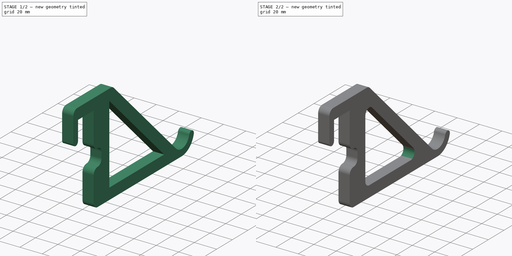
[diagram: build sequence overview — one tinted view per stage of 2, left to right]
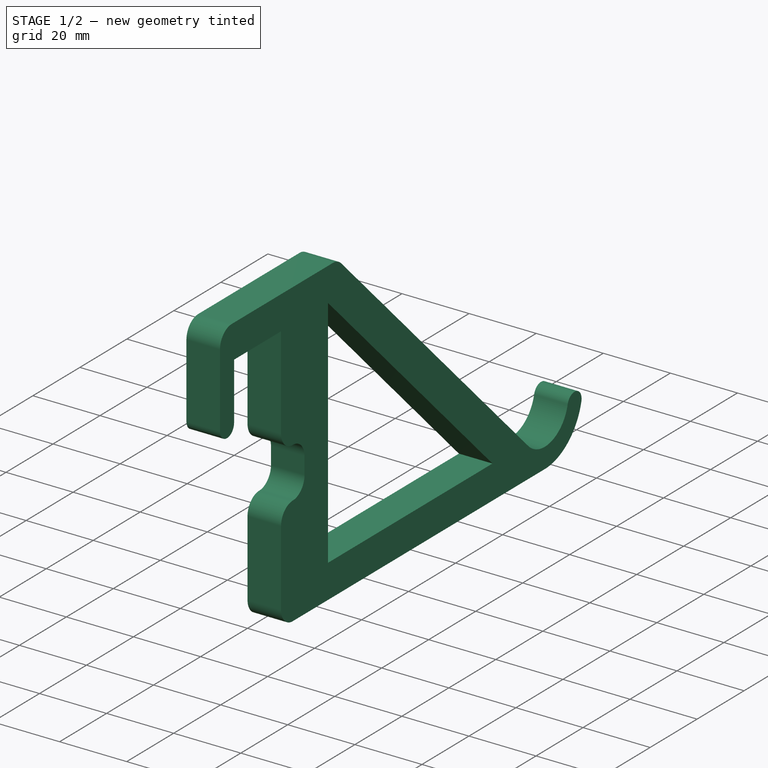
[diagram: stage 1 of 2 — iso view after this stage's code; geometry added in this stage tinted green]
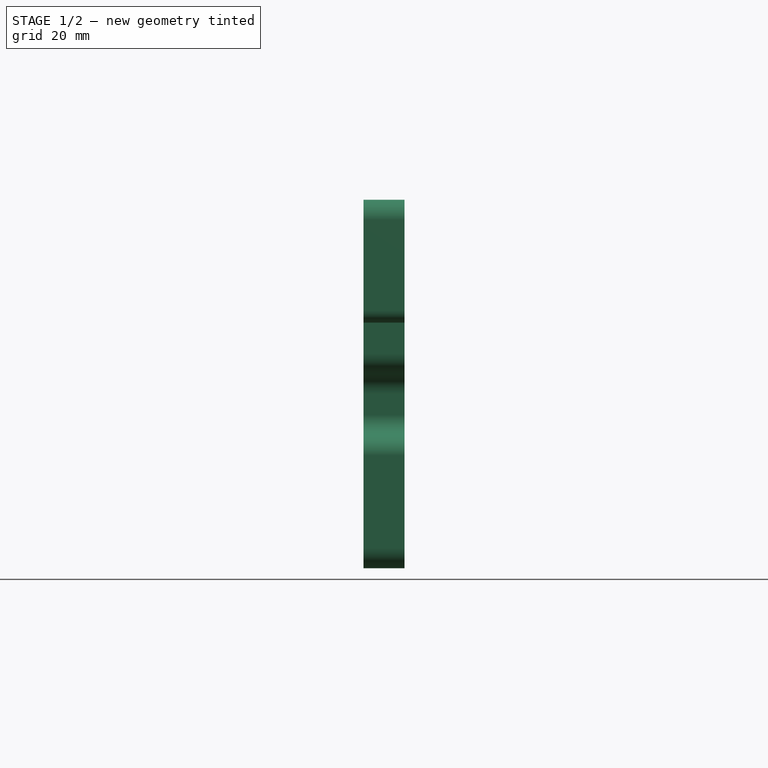
[diagram: stage 1 of 2 — front view after this stage's code; geometry added in this stage tinted green]
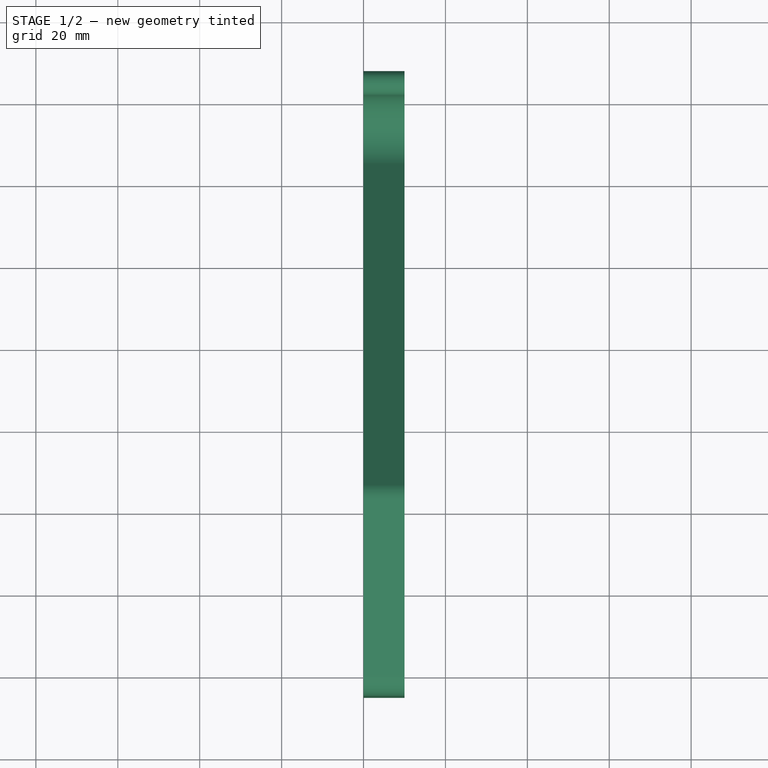
[diagram: stage 1 of 2 — top view after this stage's code; geometry added in this stage tinted green]
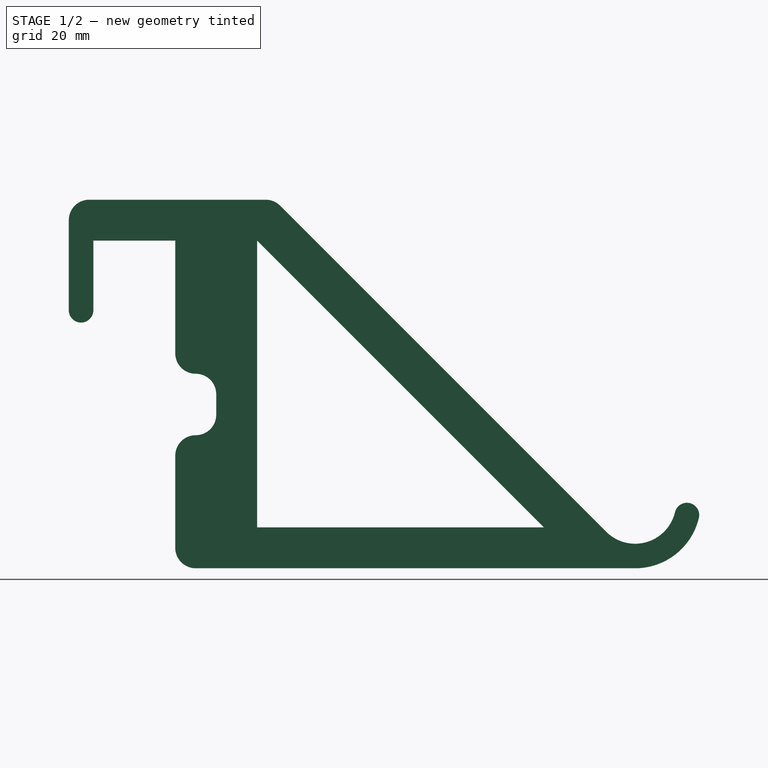
[diagram: stage 1 of 2 — right view after this stage's code; geometry added in this stage tinted green]
FCSTD DOCUMENT  (FreeCAD 0.19R24276 (Git))
Label: SchuurHanger
License: All rights reserved
LicenseURL: http://en.wikipedia.org/wiki/All_rights_reserved
objects: Sketcher::SketchObject×1, PartDesign::Pad×1, PartDesign::Fillet×1, PartDesign::Body×1
note: 6 computed .brp shape members not serialized (recipe doc carries the construction recipe); baked Part::Feature solids carry a one-line shape summary decoded from their .brp

FEATURE [Sketcher::SketchObject] Sketch
  FullyConstrained = true
  MapMode = 5
  Placement = pos=(0,0,0) rot=(0.57735,0.57735,0.57735;2.0944rad)
  Support = -> [YZ_Plane]
  sketch-geometry (33):
    g0: LineSegment StartX=-46 StartY=53 StartZ=0 EndX=-46 EndY=75 EndZ=0
    g1: LineSegment StartX=-41 StartY=80 StartZ=0 EndX=2.07107 EndY=80 EndZ=0
    g2: LineSegment StartX=5.6066 StartY=78.5355 StartZ=0 EndX=85.2132 EndY=-1.07107 EndZ=0
    g3: LineSegment StartX=-20 StartY=70 StartZ=0 EndX=-40 EndY=70 EndZ=0
    g4: LineSegment StartX=-40 StartY=70 StartZ=0 EndX=-40 EndY=53 EndZ=0
    g5: LineSegment StartX=-46 StartY=53 StartZ=0 EndX=-40 EndY=53 EndZ=0
    g6: LineSegment StartX=-20 StartY=70 StartZ=0 EndX=0 EndY=70 EndZ=0
    g7: ArcOfCircle CenterX=92.2843 CenterY=6 CenterZ=0 NormalX=0 NormalY=0 NormalZ=1 AngleXU=0 Radius=10 StartAngle=3.92699 EndAngle=6.05032
    g8: ArcOfCircle CenterX=92.2843 CenterY=6 CenterZ=0 NormalX=0 NormalY=0 NormalZ=1 AngleXU=0 Radius=16 StartAngle=4.71239 EndAngle=6.05032
    g9: LineSegment StartX=-15 StartY=-10 StartZ=0 EndX=92.2843 EndY=-10 EndZ=0
    g10: LineSegment StartX=70 StartY=0 StartZ=0 EndX=0 EndY=70 EndZ=0
    g11: LineSegment StartX=0 StartY=70 StartZ=0 EndX=0 EndY=0 EndZ=0
    g12: LineSegment StartX=0 StartY=0 StartZ=0 EndX=70 EndY=0 EndZ=0
    g13: LineSegment StartX=0 StartY=70 StartZ=0 EndX=7.07107 EndY=77.0711 EndZ=0
    g14: LineSegment StartX=0 StartY=70 StartZ=0 EndX=0 EndY=80 EndZ=0
    g15: LineSegment StartX=0 StartY=0 StartZ=0 EndX=0 EndY=-10 EndZ=0
    g16: LineSegment StartX=-10 StartY=30 StartZ=0 EndX=0 EndY=30 EndZ=0
    g17: LineSegment StartX=-10 StartY=32.5 StartZ=0 EndX=-10 EndY=27.5 EndZ=0
    g18: LineSegment StartX=-20 StartY=70 StartZ=0 EndX=-20 EndY=42.5 EndZ=0
    g19: LineSegment StartX=-20 StartY=17.5 StartZ=0 EndX=-20 EndY=-5 EndZ=0
    g20: ArcOfCircle CenterX=-41 CenterY=75 CenterZ=0 NormalX=0 NormalY=0 NormalZ=1 AngleXU=0 Radius=5 StartAngle=1.5708 EndAngle=3.14159
    g21: ArcOfCircle CenterX=2.07107 CenterY=75 CenterZ=0 NormalX=0 NormalY=0 NormalZ=1 AngleXU=0 Radius=5 StartAngle=0.785398 EndAngle=1.5708
    g22: LineSegment StartX=92.2843 StartY=6 StartZ=0 EndX=104.933 EndY=6 EndZ=0
    g23: LineSegment StartX=92.2843 StartY=-10 StartZ=0 EndX=92.2843 EndY=-4 EndZ=0
    g24: ArcOfCircle CenterX=104.933 CenterY=3 CenterZ=0 NormalX=0 NormalY=0 NormalZ=1 AngleXU=0 Radius=3 StartAngle=6.05032 EndAngle=9.19191
    g25: ArcOfCircle CenterX=-15 CenterY=32.5 CenterZ=0 NormalX=0 NormalY=0 NormalZ=1 AngleXU=0 Radius=5 StartAngle=-9e-16 EndAngle=1.5708
    g26: ArcOfCircle CenterX=-15 CenterY=27.5 CenterZ=0 NormalX=0 NormalY=0 NormalZ=1 AngleXU=0 Radius=5 StartAngle=4.71239 EndAngle=6.28319
    g27: ArcOfCircle CenterX=-15 CenterY=-5 CenterZ=0 NormalX=0 NormalY=0 NormalZ=1 AngleXU=0 Radius=5 StartAngle=3.14159 EndAngle=4.71239
    g28: ArcOfCircle CenterX=-43 CenterY=53 CenterZ=0 NormalX=0 NormalY=0 NormalZ=1 AngleXU=0 Radius=3 StartAngle=3.14159 EndAngle=6.28319
    g29: LineSegment StartX=-43 StartY=70 StartZ=0 EndX=-43 EndY=50 EndZ=0
    g30: ArcOfCircle CenterX=-15 CenterY=42.5 CenterZ=0 NormalX=0 NormalY=0 NormalZ=1 AngleXU=0 Radius=5 StartAngle=3.14159 EndAngle=4.71239
    g31: ArcOfCircle CenterX=-15 CenterY=17.5 CenterZ=0 NormalX=0 NormalY=0 NormalZ=1 AngleXU=0 Radius=5 StartAngle=1.5708 EndAngle=3.14159
    g32: LineSegment StartX=-15 StartY=42.5 StartZ=0 EndX=-15 EndY=17.5 EndZ=0
  constraints (92):
    c: Vertical(g0)
    c: Horizontal(g1)
    c: Horizontal(g3)
    c: Coincident(g3,g4)
    c: Vertical(g4)
    c: Coincident(g5,g4)
    c: Horizontal(g5)
    c: DistanceX(g3,g3) = 20
    c: Coincident(g0,g5)
    c: Horizontal(g6)
    c: Tangent(g7,g2) = -1.5708
    c: Coincident(g8,g7)
    c: Radius(g7) = 10
    c: Horizontal(g9)
    c: Tangent(g8,g9) = -1.5708
    c: Coincident(g10,g11)
    c: Vertical(g11)
    c: Coincident(g11,g12)
    c: Coincident(g12,g10)
    c: Horizontal(g12)
    c: Coincident(g13,g6)
    c: PointOnObject(g13,g2)
    c: Perpendicular(g2,g13)
    c: Coincident(g14,g6)
    c: PointOnObject(g14,g1)
    c: Vertical(g14)
    c: Coincident(g10,g6)
    c: DistanceX(g3,g14) = 20
    c: Coincident(g15,g11)
    c: Vertical(g15)
    c: PointOnObject(g15,g9)
    c: Parallel(g10,g2)
    c: PointOnObject(g16,g11)
    c: Horizontal(g16)
    c: DistanceY(g16,g3) = 40
    c: Equal(g15,g14)
    c: Coincident(g18,g3)
    c: Vertical(g18)
    c: Vertical(g19)
    c: Angle(g11,g2) = 0.785398
    c: Equal(g14,g13)
    c: Coincident(g6,g3)
    c: Tangent(g0,g20) = 1.5708
    c: Tangent(g1,g20) = 1.5708
    c: Tangent(g1,g21) = 1.5708
    c: Tangent(g2,g21) = 1.5708
    c: Coincident(g22,g7)
    c: Horizontal(g22)
    c: PointOnObject(g23,g7)
    c: PointOnObject(g7,g23)
    c: Equal(g20,g21)
    c: Tangent(g8,g24) = -1.5708
    c: Tangent(g7,g24) = 1.5708
    c: Tangent(g22,g24) = 1.5708
    c: Coincident(g8,g23)
    c: Tangent(g9,g27) = -1.5708
    c: Tangent(g19,g27) = -1.5708
    c: DistanceY(g9,g3) = 80
    c: DistanceY(g15,g15) = 10
    c: PointOnObject(g28,g5)
    c: Coincident(g28,g0)
    c: Coincident(g28,g4)
    c: PointOnObject(g29,g28)
    c: Vertical(g29)
    c: DistanceX(g5,g5) = 6
    c: PointOnObject(g29,g3)
    c: PointOnObject(g28,g29)
    c: Equal(g29,g3)
    c: Coincident(g11,g-1)  '__ANCHOR__'
    c: Tangent(g18,g30) = -1.5708
    c: Tangent(g19,g31) = -1.5708
    c: DistanceY(g26,g25) = 15
    c: Symmetric(g18,g19,g16)
    c: Equal(g16,g15)
    c: DistanceY(g23,g23) = 6
    c: Vertical(g17)
    c: Equal(g31,g26)
    c: Equal(g26,g25)
    c: Equal(g25,g30)
    c: Coincident(g32,g30)
    c: Coincident(g32,g31)
    c: PointOnObject(g26,g32)
    c: PointOnObject(g25,g32)
    c: PointOnObject(g26,g32)
    c: Coincident(g26,g31)
    c: Coincident(g25,g30)
    c: Coincident(g17,g26)
    c: PointOnObject(g25,g32)
    c: Tangent(g17,g25) = 1.5708
    c: PointOnObject(g16,g17)
    c: Equal(g27,g21)
    c: Radius(g20) = 5
FEATURE [PartDesign::Pad] Pad
  Direction = (1,1,1)
  Length = 10
  Length2 = 100
  Placement = pos=(0,0,0) rot=(0.57735,0.57735,0.57735;2.0944rad)
  Profile = -> Sketch
  Type = 0
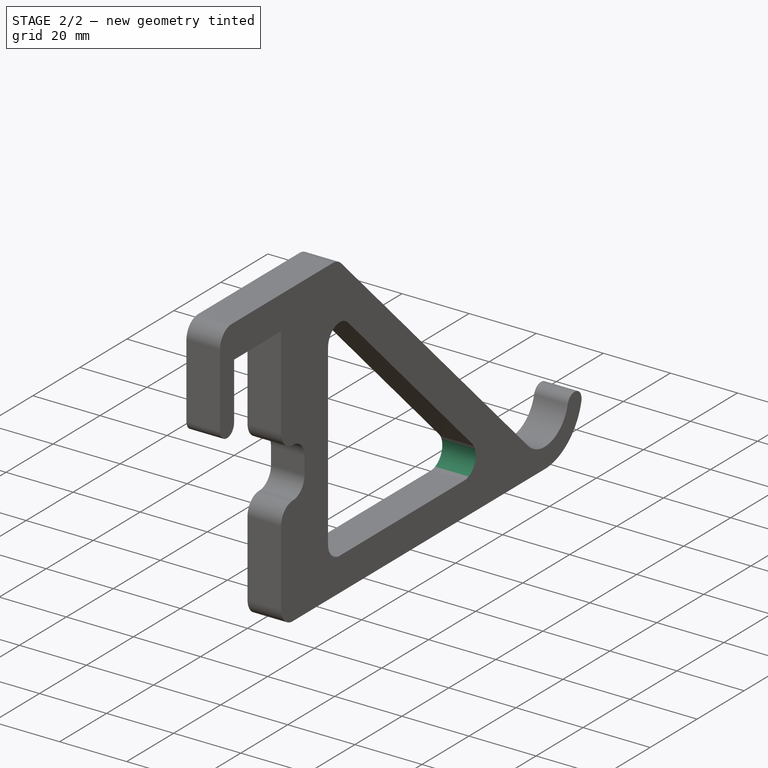
[diagram: stage 2 of 2 — iso view after this stage's code; geometry added in this stage tinted green]
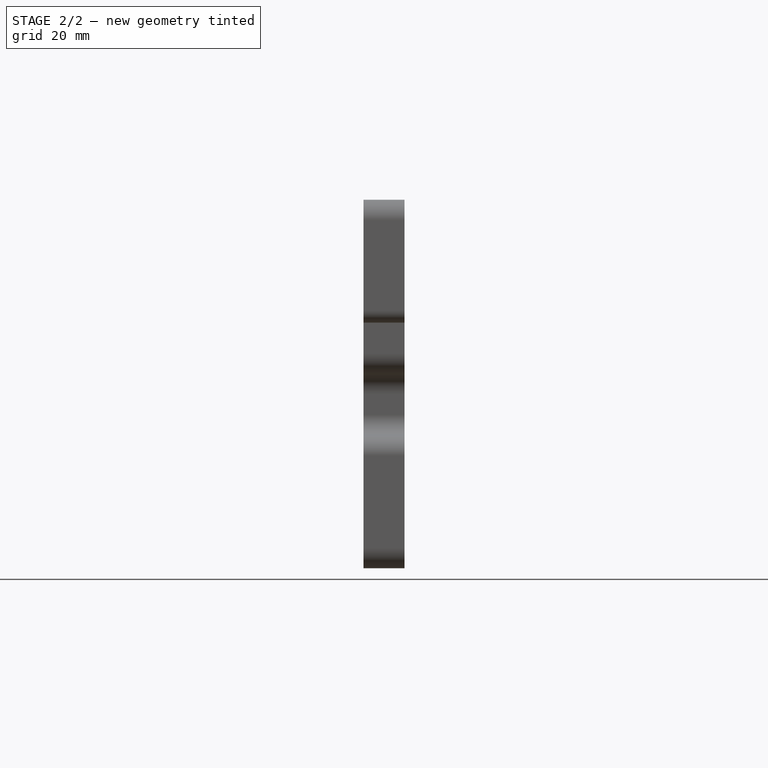
[diagram: stage 2 of 2 — front view after this stage's code; geometry added in this stage tinted green]
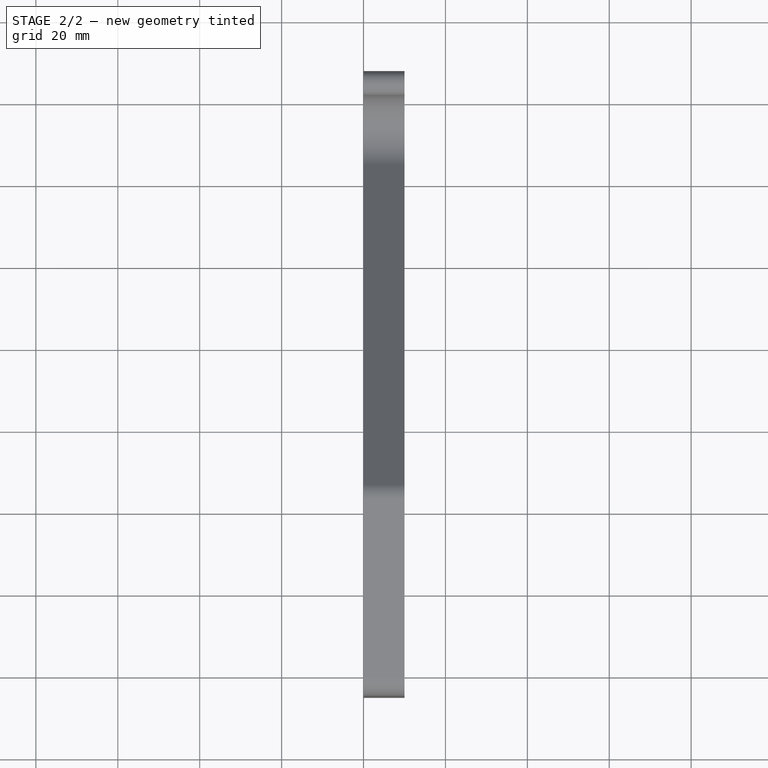
[diagram: stage 2 of 2 — top view after this stage's code; geometry added in this stage tinted green]
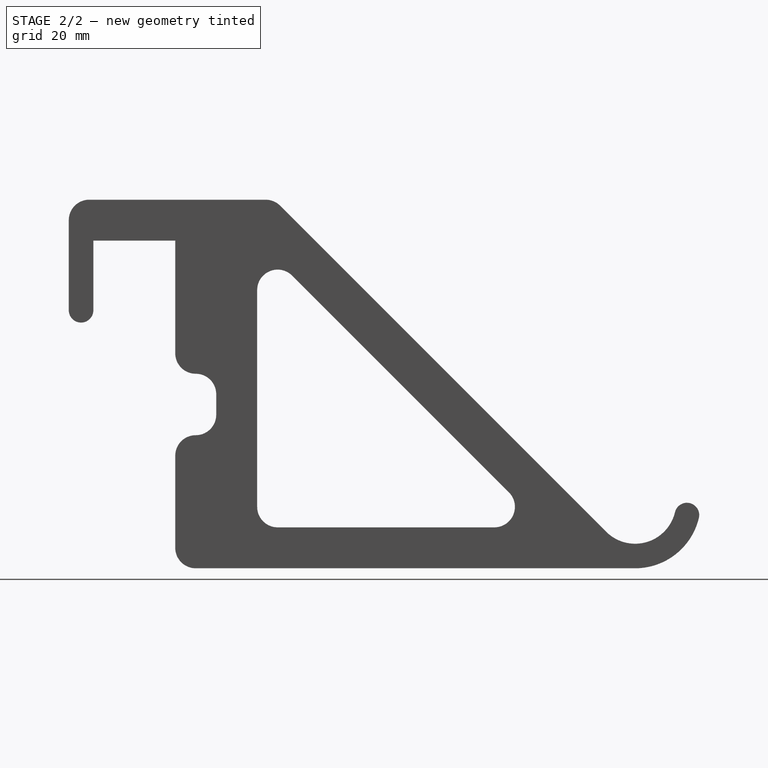
[diagram: stage 2 of 2 — right view after this stage's code; geometry added in this stage tinted green]
FEATURE [PartDesign::Fillet] Fillet
  Base = -> Pad [Edge62,Edge65,Edge61]
  BaseFeature = -> Pad
  Placement = pos=(0,0,0) rot=(0.57735,0.57735,0.57735;2.0944rad)
  Radius = 5
  SupportTransform = false
FEATURE [PartDesign::Body] Body
  Group = -> [Sketch,Pad,Fillet]
  Origin = -> Origin
  Tip = -> Fillet
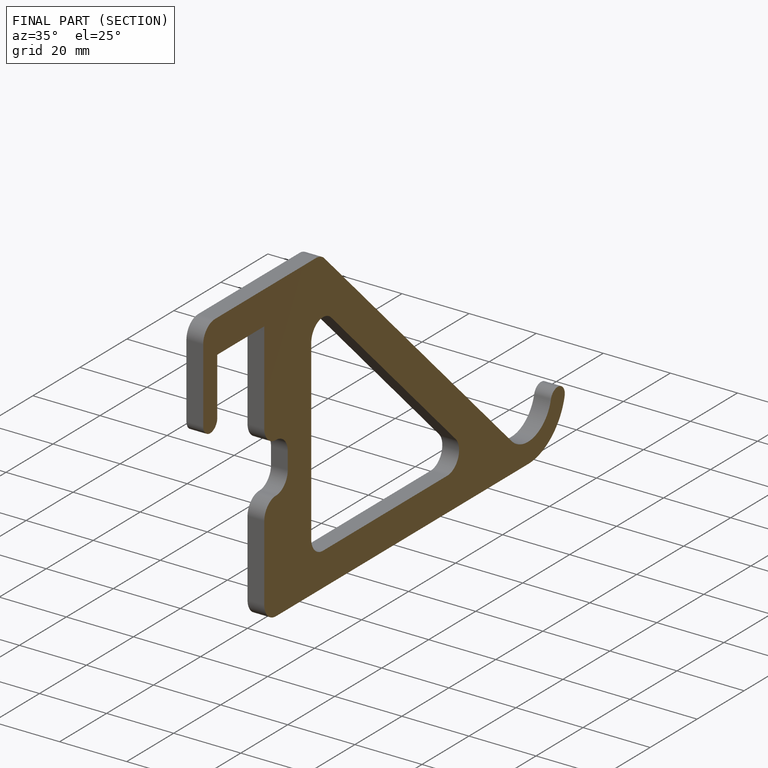
[diagram: finished part — half-section view (interior)]
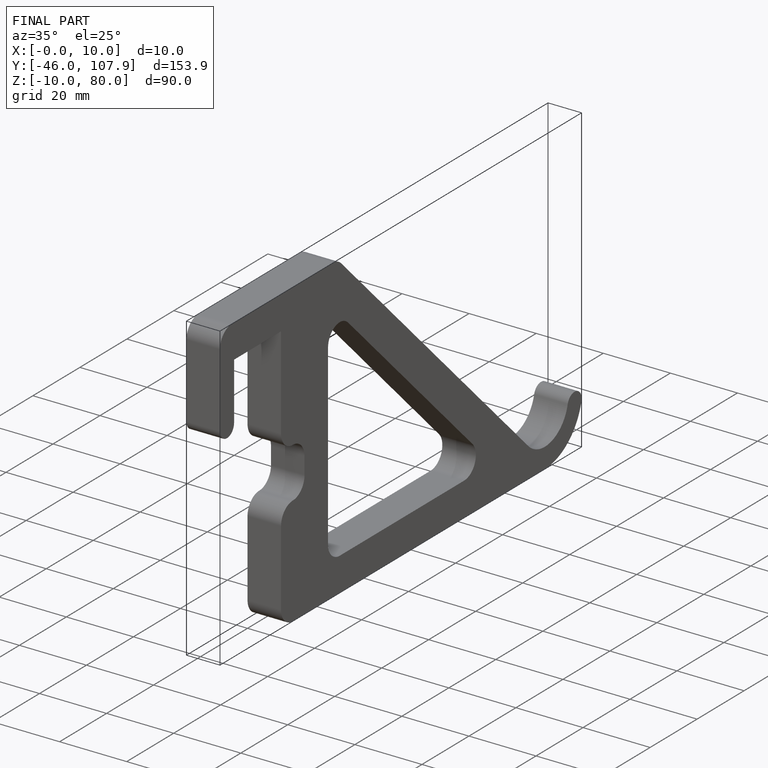
[diagram: finished part — iso view with bounding-box wireframe]
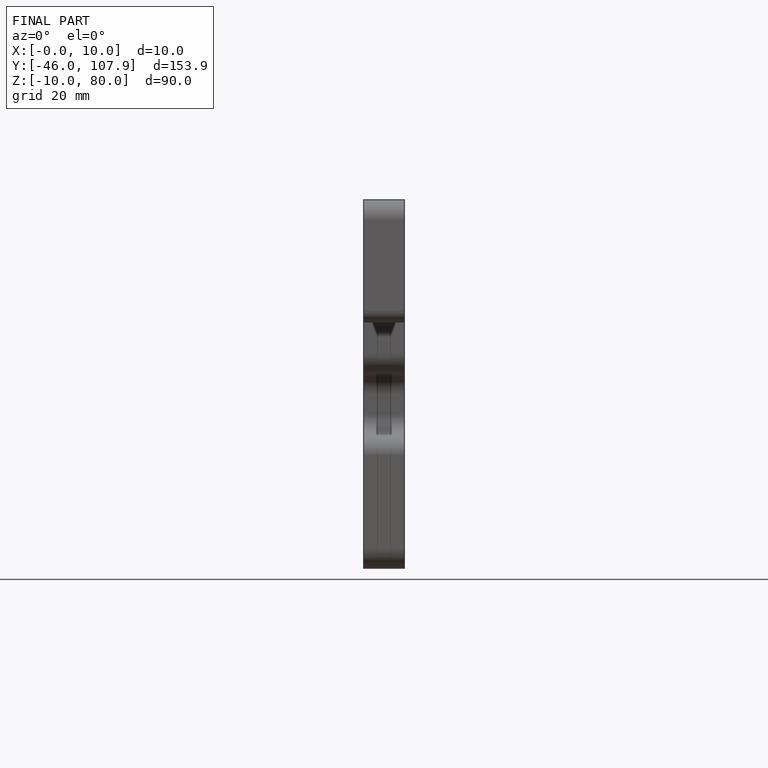
[diagram: finished part — front view with bounding-box wireframe]
